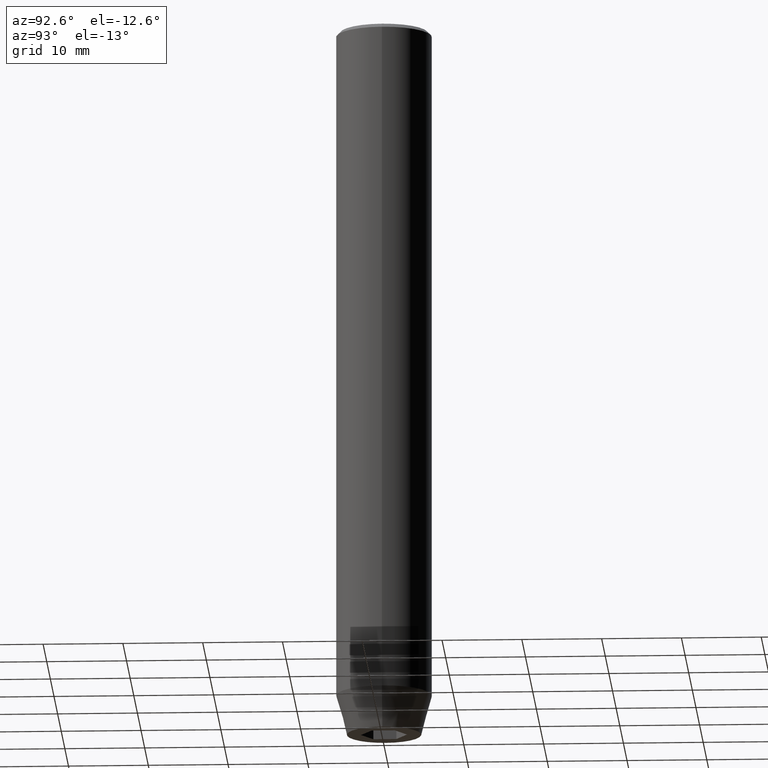
[diagram: clean part render]
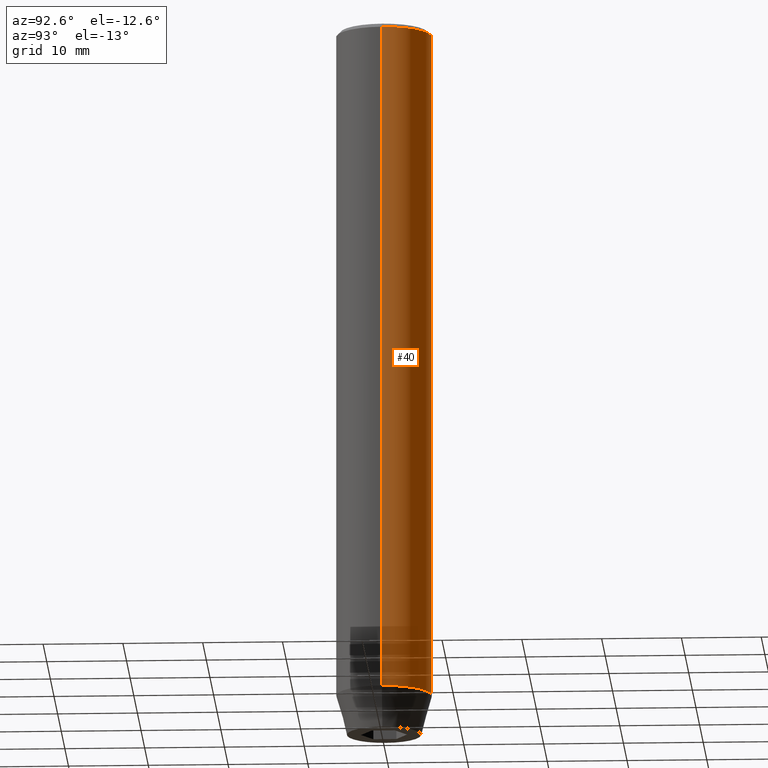
[diagram: same view with one face highlighted and labeled with its STEP entity id]
A machine part, auxiliary view. The second image highlights one B-rep face of the part: STEP entity #40.
In plain terms, the highlighted cylindrical surface (partial cylindrical patch) has radius 6 mm, axis along (-0, -0, 1).
Its self-contained STEP definition (entity closure, byte-faithful):
#1 = CYLINDRICAL_SURFACE ( 'NONE', #310, 6.000000000000000000 ) ;
#13 = AXIS2_PLACEMENT_3D ( 'NONE', #296, #388, #540 ) ;
#40 = ADVANCED_FACE ( 'NONE', ( #186 ), #1, .T. ) ;
#70 = EDGE_CURVE ( 'NONE', #439, #410, #87, .T. ) ;
#73 = DIRECTION ( 'NONE',  ( -0.000000000000000000, -0.000000000000000000, 1.000000000000000000 ) ) ;
#84 = DIRECTION ( 'NONE',  ( 1.000000000000000000, 0.000000000000000000, 0.000000000000000000 ) ) ;
#87 = LINE ( 'NONE', #364, #155 ) ;
#102 = EDGE_LOOP ( 'NONE', ( #172, #530, #486, #258 ) ) ;
#111 = VECTOR ( 'NONE', #73, 1000.000000000000000 ) ;
#155 = VECTOR ( 'NONE', #549, 1000.000000000000000 ) ;
#172 = ORIENTED_EDGE ( 'NONE', *, *, #294, .T. ) ;
#185 = CARTESIAN_POINT ( 'NONE',  ( 6.000000000000000000, 0.000000000000000000, -84.99999999999998579 ) ) ;
#186 = FACE_OUTER_BOUND ( 'NONE', #102, .T. ) ;
#258 = ORIENTED_EDGE ( 'NONE', *, *, #349, .F. ) ;
#262 = LINE ( 'NONE', #440, #111 ) ;
#294 = EDGE_CURVE ( 'NONE', #550, #439, #581, .T. ) ;
#296 = CARTESIAN_POINT ( 'NONE',  ( 0.000000000000000000, 0.000000000000000000, -0.4999999999999891753 ) ) ;
#310 = AXIS2_PLACEMENT_3D ( 'NONE', #542, #321, #84 ) ;
#321 = DIRECTION ( 'NONE',  ( -0.000000000000000000, -0.000000000000000000, 1.000000000000000000 ) ) ;
#328 = VERTEX_POINT ( 'NONE', #478 ) ;
#332 = AXIS2_PLACEMENT_3D ( 'NONE', #417, #516, #470 ) ;
#343 = CARTESIAN_POINT ( 'NONE',  ( -6.000000000000000000, 7.347880794884119736E-16, -84.99999999999998579 ) ) ;
#349 = EDGE_CURVE ( 'NONE', #550, #328, #262, .T. ) ;
#364 = CARTESIAN_POINT ( 'NONE',  ( -6.000000000000000000, 7.347880794884119736E-16, 0.000000000000000000 ) ) ;
#367 = EDGE_CURVE ( 'NONE', #410, #328, #398, .T. ) ;
#388 = DIRECTION ( 'NONE',  ( 0.000000000000000000, 0.000000000000000000, -1.000000000000000000 ) ) ;
#398 = CIRCLE ( 'NONE', #13, 6.000000000000000000 ) ;
#410 = VERTEX_POINT ( 'NONE', #441 ) ;
#417 = CARTESIAN_POINT ( 'NONE',  ( 0.000000000000000000, 0.000000000000000000, -84.99999999999998579 ) ) ;
#439 = VERTEX_POINT ( 'NONE', #343 ) ;
#440 = CARTESIAN_POINT ( 'NONE',  ( 6.000000000000000000, 0.000000000000000000, 0.000000000000000000 ) ) ;
#441 = CARTESIAN_POINT ( 'NONE',  ( -6.000000000000000000, 7.347880794884119736E-16, -0.4999999999999891753 ) ) ;
#470 = DIRECTION ( 'NONE',  ( 1.000000000000000000, 0.000000000000000000, 0.000000000000000000 ) ) ;
#478 = CARTESIAN_POINT ( 'NONE',  ( 6.000000000000000000, 0.000000000000000000, -0.4999999999999891753 ) ) ;
#486 = ORIENTED_EDGE ( 'NONE', *, *, #367, .T. ) ;
#516 = DIRECTION ( 'NONE',  ( -0.000000000000000000, -0.000000000000000000, 1.000000000000000000 ) ) ;
#530 = ORIENTED_EDGE ( 'NONE', *, *, #70, .T. ) ;
#540 = DIRECTION ( 'NONE',  ( 1.000000000000000000, 0.000000000000000000, 0.000000000000000000 ) ) ;
#542 = CARTESIAN_POINT ( 'NONE',  ( 0.000000000000000000, 0.000000000000000000, 0.000000000000000000 ) ) ;
#549 = DIRECTION ( 'NONE',  ( -0.000000000000000000, -0.000000000000000000, 1.000000000000000000 ) ) ;
#550 = VERTEX_POINT ( 'NONE', #185 ) ;
#581 = CIRCLE ( 'NONE', #332, 6.000000000000000000 ) ;